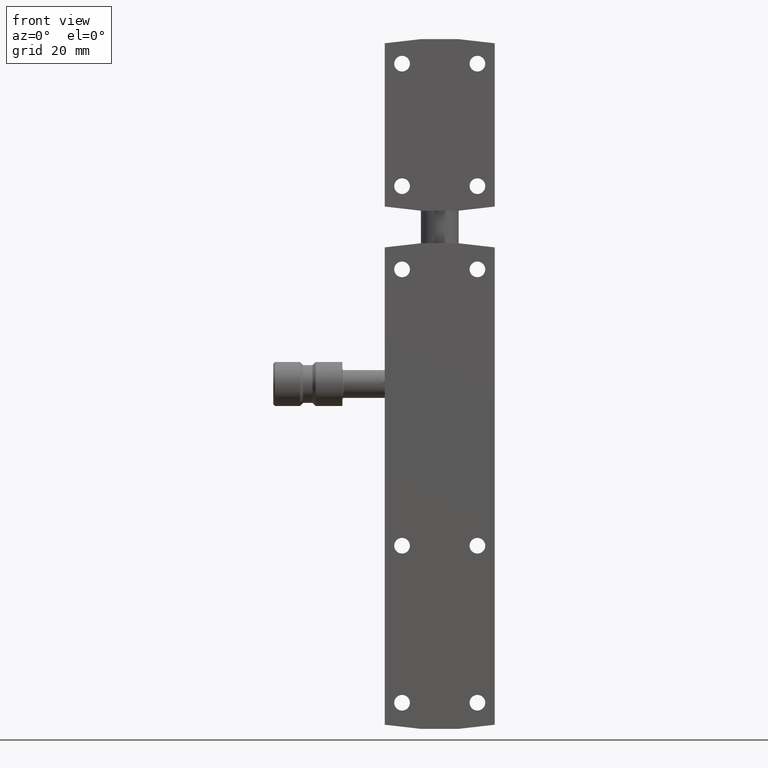
[diagram: clean part render]
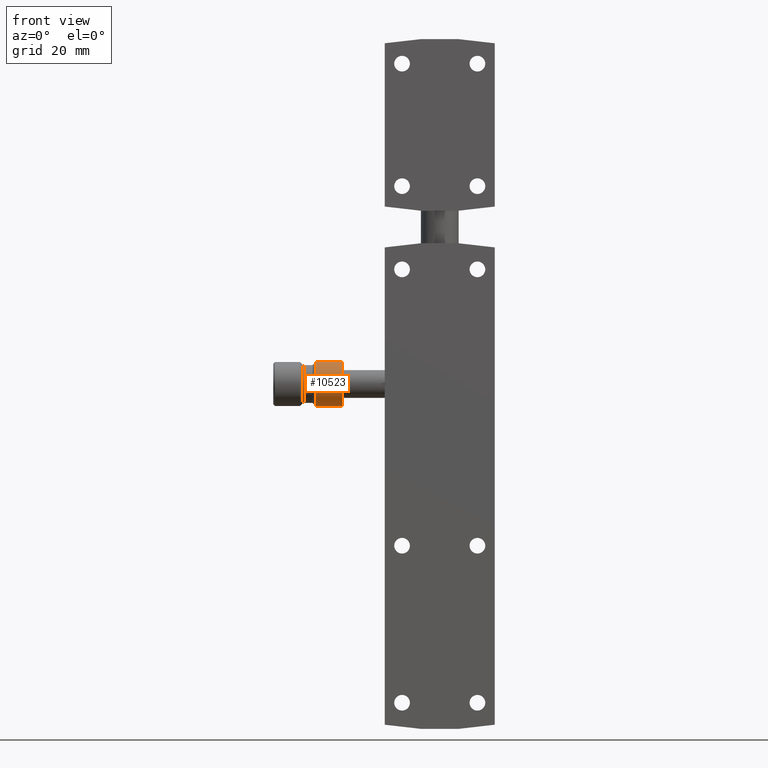
[diagram: same view with one face highlighted and labeled with its STEP entity id]
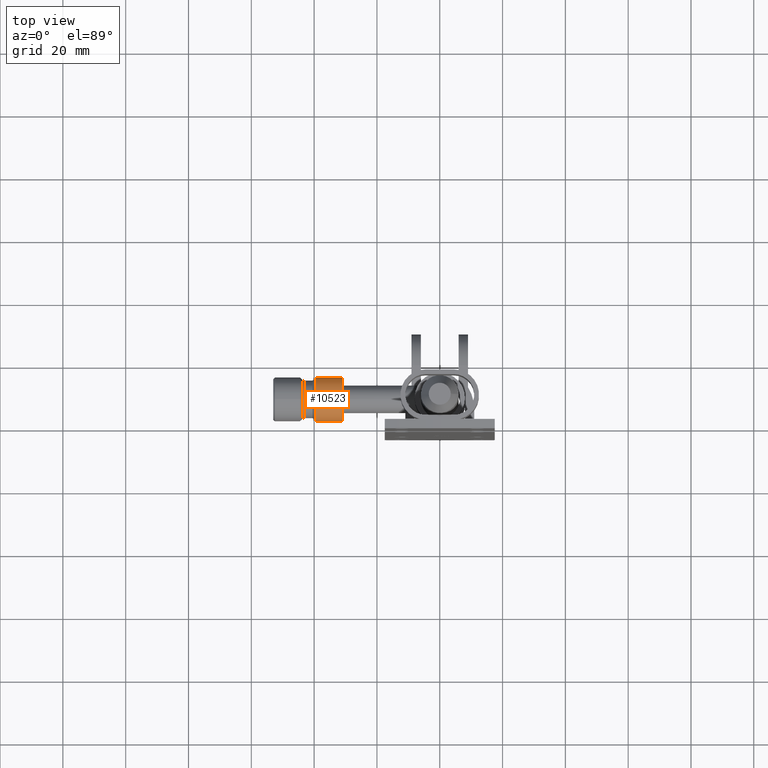
[diagram: same view with one face highlighted and labeled with its STEP entity id]
A machine part, front view. The second image highlights one B-rep face of the part: STEP entity #10523.
A second angle (top view) of the same face is appended — the face is thin or edge-on in the first view.
In plain terms, the highlighted cylindrical surface (bore or boss wall) has radius 7 mm, axis along (1, 0, 0).
Its self-contained STEP definition (entity closure, byte-faithful):
#957 = CARTESIAN_POINT ( 'NONE',  ( -31.00000000000000000, 0.000000000000000000, 3.000000000000002665 ) ) ;
#1529 = CARTESIAN_POINT ( 'NONE',  ( -31.00000000000000000, 0.000000000000000000, 3.000000000000002665 ) ) ;
#1818 = CARTESIAN_POINT ( 'NONE',  ( -39.50000000000000000, 0.000000000000000000, 3.000000000000003553 ) ) ;
#1941 = FACE_OUTER_BOUND ( 'NONE', #11929, .T. ) ;
#1967 = ORIENTED_EDGE ( 'NONE', *, *, #11862, .F. ) ;
#3190 = DIRECTION ( 'NONE',  ( 0.000000000000000000, 0.000000000000000000, -1.000000000000000000 ) ) ;
#3448 = EDGE_LOOP ( 'NONE', ( #5769 ) ) ;
#3540 = VERTEX_POINT ( 'NONE', #4362 ) ;
#3764 = AXIS2_PLACEMENT_3D ( 'NONE', #957, #10323, #3190 ) ;
#3925 = DIRECTION ( 'NONE',  ( 1.000000000000000000, -0.000000000000000000, -1.182766006347823109E-16 ) ) ;
#4272 = DIRECTION ( 'NONE',  ( 0.000000000000000000, 0.000000000000000000, -1.000000000000000000 ) ) ;
#4362 = CARTESIAN_POINT ( 'NONE',  ( -31.00000000000000000, 0.000000000000000000, -3.999999999999994671 ) ) ;
#5464 = CARTESIAN_POINT ( 'NONE',  ( -39.50000000000000000, 0.000000000000000000, -3.999999999999994671 ) ) ;
#5769 = ORIENTED_EDGE ( 'NONE', *, *, #9690, .T. ) ;
#8279 = AXIS2_PLACEMENT_3D ( 'NONE', #1818, #13703, #4272 ) ;
#9048 = AXIS2_PLACEMENT_3D ( 'NONE', #1529, #3925, #13517 ) ;
#9690 = EDGE_CURVE ( 'NONE', #11349, #11349, #10511, .T. ) ;
#10279 = CIRCLE ( 'NONE', #3764, 6.999999999999997335 ) ;
#10323 = DIRECTION ( 'NONE',  ( 1.000000000000000000, -0.000000000000000000, -1.182766006347823109E-16 ) ) ;
#10511 = CIRCLE ( 'NONE', #8279, 6.999999999999998224 ) ;
#10523 = ADVANCED_FACE ( 'NONE', ( #11222, #1941 ), #12725, .T. ) ;
#11222 = FACE_OUTER_BOUND ( 'NONE', #3448, .T. ) ;
#11349 = VERTEX_POINT ( 'NONE', #5464 ) ;
#11862 = EDGE_CURVE ( 'NONE', #3540, #3540, #10279, .T. ) ;
#11929 = EDGE_LOOP ( 'NONE', ( #1967 ) ) ;
#12725 = CYLINDRICAL_SURFACE ( 'NONE', #9048, 6.999999999999997335 ) ;
#13517 = DIRECTION ( 'NONE',  ( 0.000000000000000000, 0.000000000000000000, -1.000000000000000000 ) ) ;
#13703 = DIRECTION ( 'NONE',  ( 1.000000000000000000, -0.000000000000000000, -1.182766006347823109E-16 ) ) ;